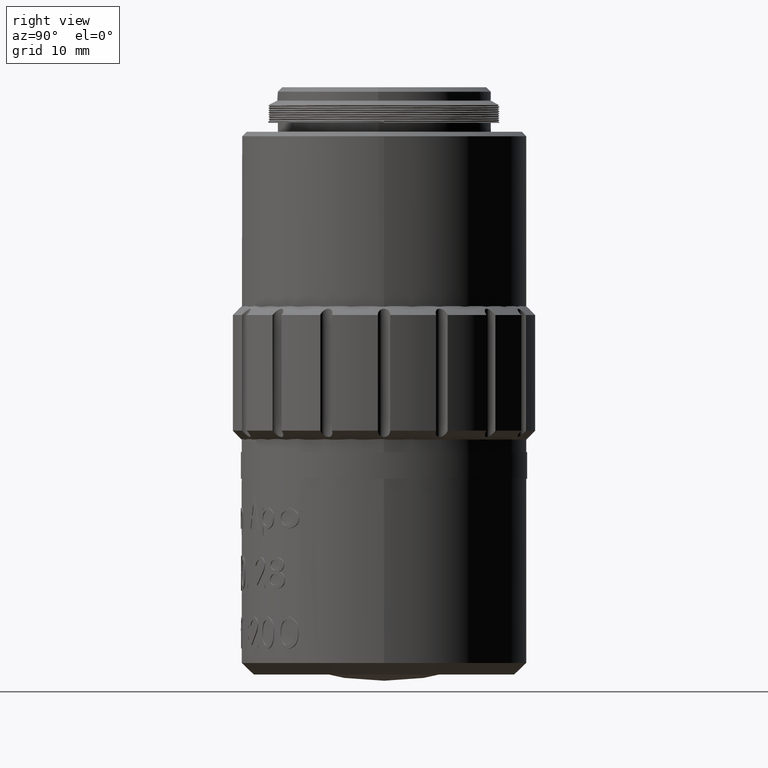
[diagram: clean part render]
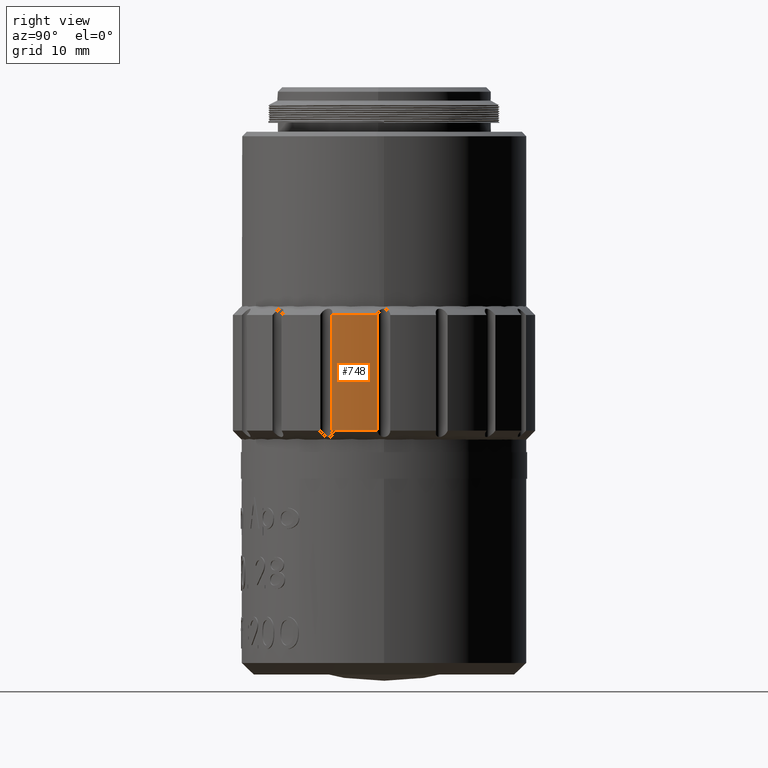
[diagram: same view with one face highlighted and labeled with its STEP entity id]
A machine part, right view. The second image highlights one B-rep face of the part: STEP entity #748.
In plain terms, the highlighted cylindrical surface (partial cylindrical patch) has radius 17 mm, axis along (-0, -0, -1).
Its self-contained STEP definition (entity closure, byte-faithful):
#37 = DIRECTION ( 'NONE',  ( -0.000000000000000000, -0.000000000000000000, 1.000000000000000000 ) ) ;
#286 = CYLINDRICAL_SURFACE ( 'NONE', #5480, 16.99999999999998579 ) ;
#610 = ORIENTED_EDGE ( 'NONE', *, *, #8209, .T. ) ;
#748 = ADVANCED_FACE ( 'NONE', ( #16021 ), #286, .T. ) ;
#1220 = CARTESIAN_POINT ( 'NONE',  ( -105.6777818098502735, 21.30734491977609224, -6.499999999999999112 ) ) ;
#2287 = EDGE_CURVE ( 'NONE', #2635, #11468, #2808, .T. ) ;
#2635 = VERTEX_POINT ( 'NONE', #4912 ) ;
#2808 = CIRCLE ( 'NONE', #12678, 17.00000000000000000 ) ;
#2823 = ORIENTED_EDGE ( 'NONE', *, *, #10502, .T. ) ;
#4668 = DIRECTION ( 'NONE',  ( 0.000000000000000000, 0.000000000000000000, 1.000000000000000000 ) ) ;
#4677 = LINE ( 'NONE', #11496, #13639 ) ;
#4723 = CARTESIAN_POINT ( 'NONE',  ( -105.6777818098502735, 21.30734491977609224, 6.500000000000000000 ) ) ;
#4876 = CARTESIAN_POINT ( 'NONE',  ( -106.6997833911265161, 16.16939600921096343, 6.500000000000000000 ) ) ;
#4895 = ORIENTED_EDGE ( 'NONE', *, *, #2287, .T. ) ;
#4912 = CARTESIAN_POINT ( 'NONE',  ( -106.6997833911265161, 16.16939600921095987, -6.499999999999999112 ) ) ;
#5480 = AXIS2_PLACEMENT_3D ( 'NONE', #5918, #7321, #17418 ) ;
#5918 = CARTESIAN_POINT ( 'NONE',  ( -122.6630341068842540, 22.01530283243863195, -8.750073880203553145 ) ) ;
#7226 = EDGE_LOOP ( 'NONE', ( #12015, #610, #4895, #2823 ) ) ;
#7321 = DIRECTION ( 'NONE',  ( -0.000000000000000000, -0.000000000000000000, -1.000000000000000000 ) ) ;
#8209 = EDGE_CURVE ( 'NONE', #11196, #2635, #4677, .T. ) ;
#9352 = VECTOR ( 'NONE', #37, 1000.000000000000000 ) ;
#9711 = CIRCLE ( 'NONE', #10614, 16.99999999999998579 ) ;
#10502 = EDGE_CURVE ( 'NONE', #11468, #17618, #14453, .T. ) ;
#10614 = AXIS2_PLACEMENT_3D ( 'NONE', #17669, #10653, #16382 ) ;
#10653 = DIRECTION ( 'NONE',  ( -0.000000000000000000, -0.000000000000000000, -1.000000000000000000 ) ) ;
#11196 = VERTEX_POINT ( 'NONE', #4876 ) ;
#11468 = VERTEX_POINT ( 'NONE', #1220 ) ;
#11496 = CARTESIAN_POINT ( 'NONE',  ( -106.6997833911265161, 16.16939600921095632, -5.050000000000006928 ) ) ;
#11675 = CARTESIAN_POINT ( 'NONE',  ( -122.6630341068842540, 22.01530283243863195, -6.499999999999999112 ) ) ;
#11685 = DIRECTION ( 'NONE',  ( 0.000000000000000000, 0.000000000000000000, -1.000000000000000000 ) ) ;
#11951 = DIRECTION ( 'NONE',  ( 1.000000000000000000, 0.000000000000000000, 0.000000000000000000 ) ) ;
#12015 = ORIENTED_EDGE ( 'NONE', *, *, #16775, .T. ) ;
#12678 = AXIS2_PLACEMENT_3D ( 'NONE', #11675, #4668, #11951 ) ;
#13639 = VECTOR ( 'NONE', #11685, 1000.000000000000000 ) ;
#14453 = LINE ( 'NONE', #18379, #9352 ) ;
#16021 = FACE_OUTER_BOUND ( 'NONE', #7226, .T. ) ;
#16382 = DIRECTION ( 'NONE',  ( -1.000000000000000000, 0.000000000000000000, 0.000000000000000000 ) ) ;
#16775 = EDGE_CURVE ( 'NONE', #17618, #11196, #9711, .T. ) ;
#17418 = DIRECTION ( 'NONE',  ( -1.000000000000000000, 0.000000000000000000, 0.000000000000000000 ) ) ;
#17618 = VERTEX_POINT ( 'NONE', #4723 ) ;
#17669 = CARTESIAN_POINT ( 'NONE',  ( -122.6630341068842540, 22.01530283243863195, 6.500000000000000000 ) ) ;
#18379 = CARTESIAN_POINT ( 'NONE',  ( -105.6777818098502735, 21.30734491977609224, -5.050000000000006928 ) ) ;